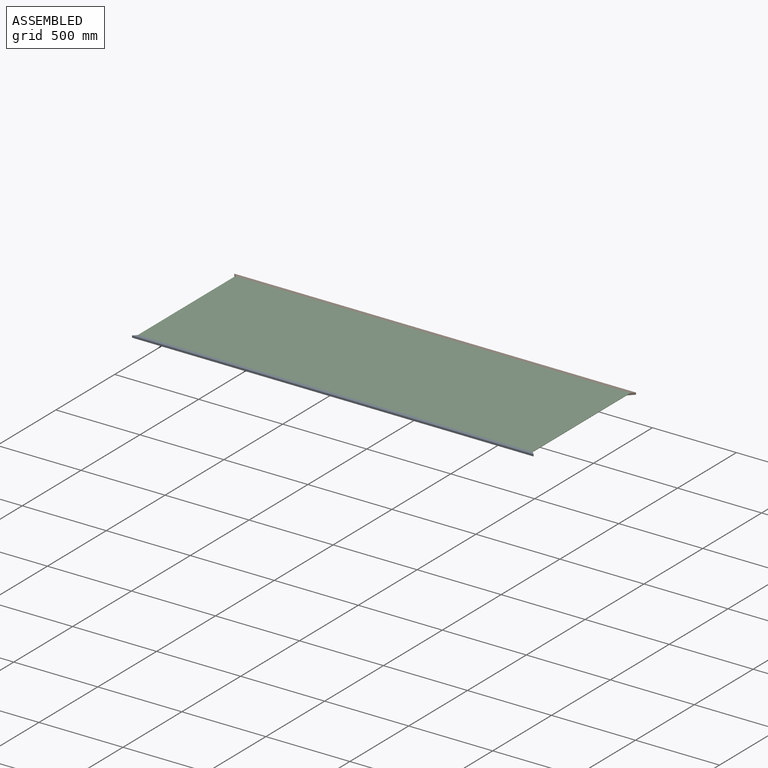
[diagram: assembled view]
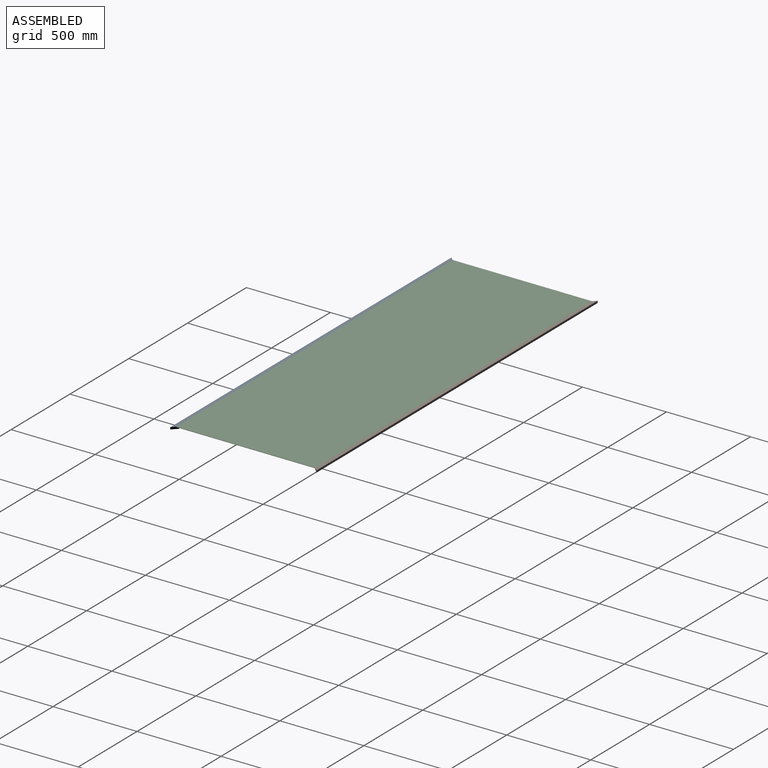
[diagram: assembled view, second angle]
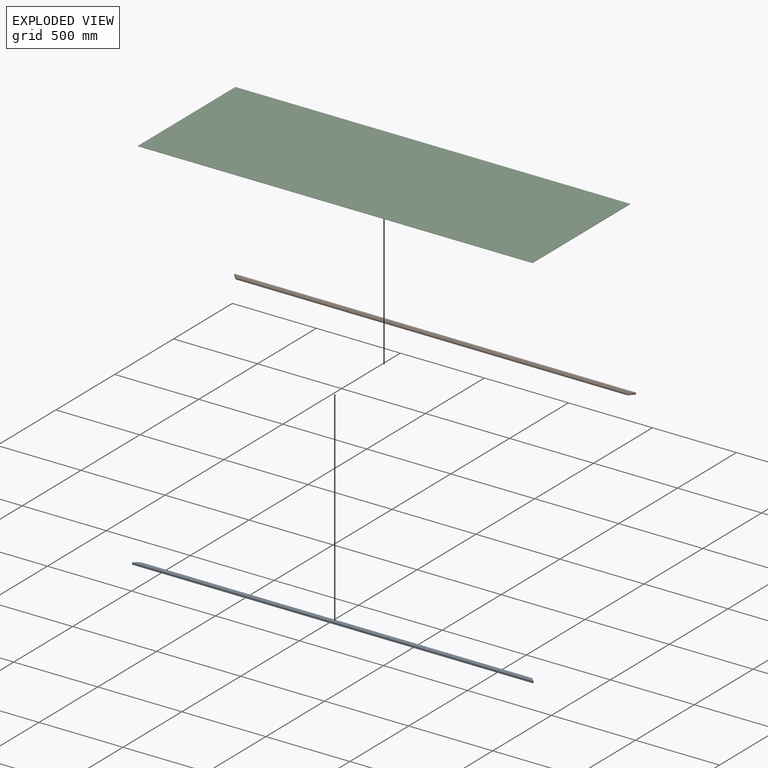
[diagram: exploded view]
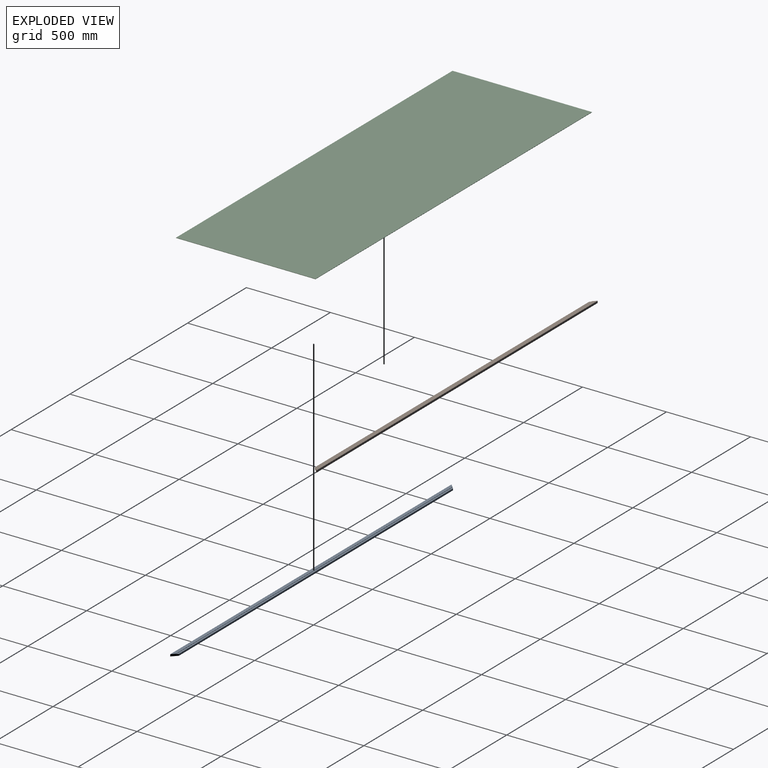
[diagram: exploded view, second angle]
ASSEMBLY  parts=3 mates=2
PART A: 8 faces, bbox 2390x30x12 mm
  f0: plane 2350x2mm, normal (0,1,0), area 4700mm2, adj f1,f3,f4,f7
  f1: plane 30x30mm, normal (-0.71,0.71,0), area 480.8mm2, adj f0,f2,f4,f5,f6,f7
  f2: plane 2390x12mm, normal (0,-1,0), area 28680mm2, adj f1,f3,f4,f5
  f3: plane 30x30mm, normal (0.71,0.71,0), area 480.8mm2, adj f0,f2,f4,f5,f6,f7
  f4: plane 2390x20mm, normal (0,0,1), area 47400mm2, adj f0,f1,f2,f3
  f5: plane 2390x30mm, normal (0,0,-1), area 70800mm2, adj f1,f2,f3,f6
  f6: plane 2330x10mm, normal (0,1,0), area 23300mm2, adj f1,f3,f5,f7
  f7: plane 2350x10mm, normal (0,0,1), area 23400mm2, adj f0,f1,f3,f6
PART B: same geometry as A
PART C: 6 faces, bbox 2350x830x2 mm
  f0: plane 830x2mm, normal (-1,0,0), area 1660mm2, adj f1,f3,f4,f5
  f1: plane 2350x2mm, normal (0,-1,0), area 4700mm2, adj f0,f2,f4,f5
  f2: plane 830x2mm, normal (1,0,0), area 1660mm2, adj f1,f3,f4,f5
  f3: plane 2350x2mm, normal (0,1,0), area 4700mm2, adj f0,f2,f4,f5
  f4: plane 2350x830mm, normal (0,0,1), area 1950500mm2, adj f0,f1,f2,f3
  f5: plane 2350x830mm, normal (0,0,-1), area 1950500mm2, adj f0,f1,f2,f3
PLACE A t=(-1124.95,-816.25,-39.29)mm
PLACE B rot(axis=(0,0,1),180deg) t=(1265.05,53.75,-39.29)mm
PLACE C t=(-1104.95,33.75,-29.29)mm
MATE fastened B.f7 <-> C.f5  axis (0,0,1) through (1245.05,33.75,-29.29)mm
MATE fastened A.f7 <-> C.f5  axis (0,0,1) through (1245.05,-796.25,-29.29)mm
